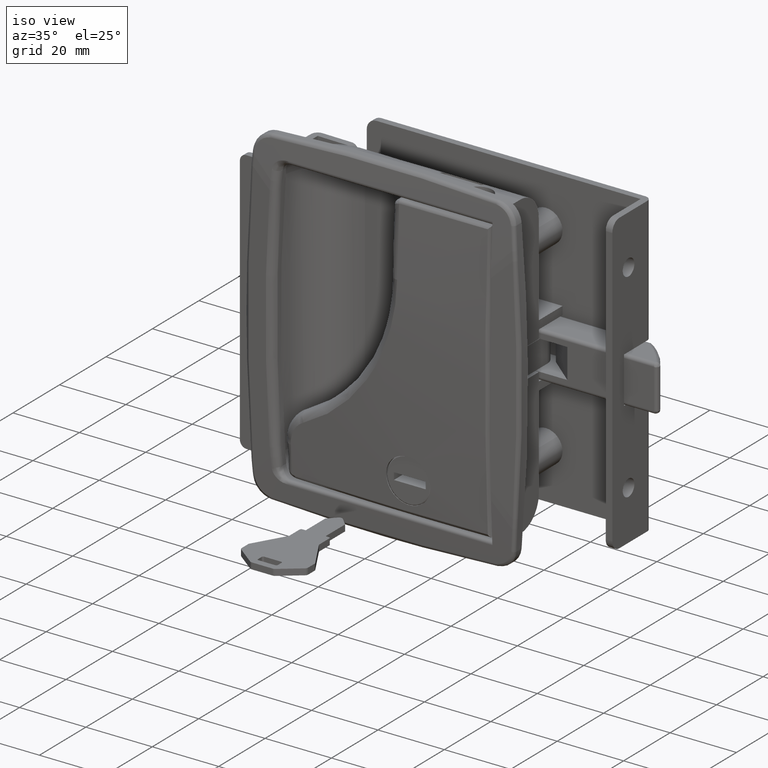
[diagram: clean part render]
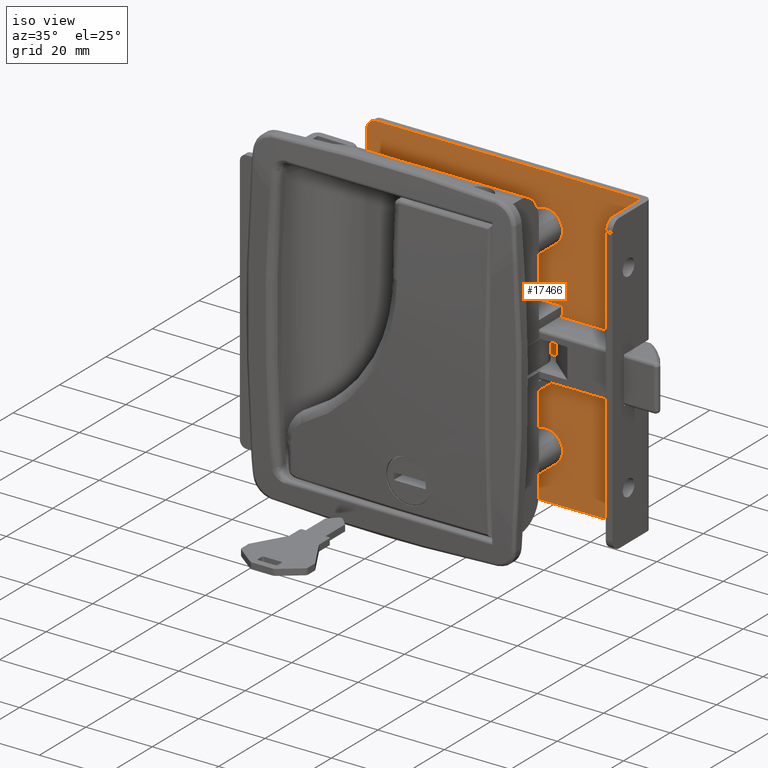
[diagram: same view with one face highlighted and labeled with its STEP entity id]
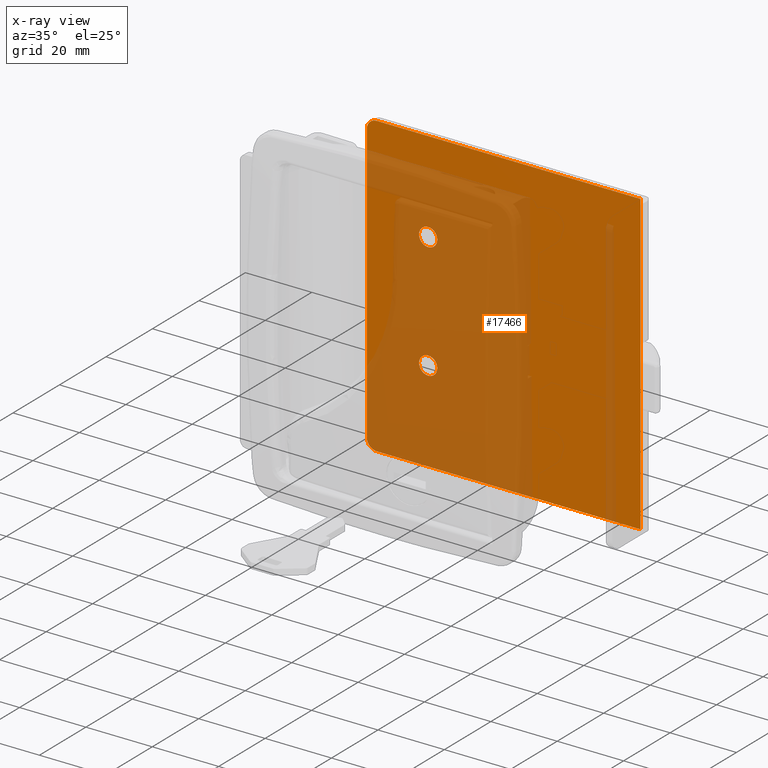
[diagram: x-ray of the same camera — body ghosted, the highlighted face saturated]
A machine part, iso view. The second image highlights one B-rep face of the part: STEP entity #17466.
The next image is the same camera in x-ray: the body ghosted, the highlighted face saturated — about 52% of this face is hidden behind the body in this view.
In plain terms, the highlighted face is a freeform B-spline surface patch.
Its self-contained STEP definition (entity closure, byte-faithful):
#11101=CARTESIAN_POINT('',(-7.499999999999770,-2.0,-14.749700000000001));
#11102=VERTEX_POINT('',#11101);
#11103=CARTESIAN_POINT('',(-5.529210521693982,-1.999999999989556,-15.581762567747401));
#11104=VERTEX_POINT('',#11103);
#11105=CARTESIAN_POINT('',(-7.499999999999770,-2.0,-14.749700000000001));
#11106=CARTESIAN_POINT('',(-7.316898805918720,-1.999999999999030,-14.749682379780181));
#11107=CARTESIAN_POINT('',(-6.927815611508847,-1.999999999996968,-14.788686678438969));
#11108=CARTESIAN_POINT('',(-6.226338163717298,-1.999999999993250,-15.014930521459121));
#11109=CARTESIAN_POINT('',(-5.768453991056186,-1.999999999990826,-15.335456611996360));
#11110=CARTESIAN_POINT('',(-5.529210521693982,-1.999999999989556,-15.581762567747401));
#11111=B_SPLINE_CURVE_WITH_KNOTS('',3,(#11105,#11106,#11107,#11108,#11109,#11110),.UNSPECIFIED.,.F.,.U.,(4,1,1,4),(0.000000032604171,0.549318739787156,1.167297478087793,2.197274861061916),.UNSPECIFIED.);
#11112=EDGE_CURVE('',#11102,#11104,#11111,.T.);
#11114=CARTESIAN_POINT('',(-10.249999999997520,-2.0,-17.499696480036189));
#11115=VERTEX_POINT('',#11114);
#11116=CARTESIAN_POINT('',(-10.249999999997520,-2.0,-17.499696480036189));
#11117=CARTESIAN_POINT('',(-10.250040727075790,-2.0,-17.252223121614630));
#11118=CARTESIAN_POINT('',(-10.173733166742830,-2.0,-16.689709287101280));
#11119=CARTESIAN_POINT('',(-9.812557236472376,-2.000000000000001,-15.926064476880111));
#11120=CARTESIAN_POINT('',(-9.279262947990672,-1.999999999999999,-15.366071417797590));
#11121=CARTESIAN_POINT('',(-8.782591651496167,-2.0,-15.051718151289061));
#11122=CARTESIAN_POINT('',(-8.219856239878654,-2.0,-14.818577055773750));
#11123=CARTESIAN_POINT('',(-7.792506192846882,-2.000000000000002,-14.749514343621270));
#11124=CARTESIAN_POINT('',(-7.499999999999770,-2.0,-14.749700000000001));
#11125=B_SPLINE_CURVE_WITH_KNOTS('',3,(#11116,#11117,#11118,#11119,#11120,#11121,#11122,#11123,#11124),.UNSPECIFIED.,.F.,.U.,(4,1,1,1,1,1,4),(0.000000113703493,0.742463611042443,1.687447851981347,2.497349232957594,3.037350483973803,3.442344041872089,4.319796312962690),.UNSPECIFIED.);
#11126=EDGE_CURVE('',#11115,#11102,#11125,.T.);
#11128=CARTESIAN_POINT('',(-7.499999999999770,-2.0,-20.249700000000001));
#11129=VERTEX_POINT('',#11128);
#11130=CARTESIAN_POINT('',(-7.499999999999770,-2.0,-20.249700000000001));
#11131=CARTESIAN_POINT('',(-7.837533458423358,-1.999999999999996,-20.250032966791679));
#11132=CARTESIAN_POINT('',(-8.354739198675501,-2.000000000000008,-20.153149346765431));
#11133=CARTESIAN_POINT('',(-9.061541571091166,-1.999999999999994,-19.797423171544150));
#11134=CARTESIAN_POINT('',(-9.578205878396684,-2.000000000000002,-19.351810811415952));
#11135=CARTESIAN_POINT('',(-9.955935345113538,-2.0,-18.786296907043699));
#11136=CARTESIAN_POINT('',(-10.191889706605741,-2.0,-18.174612791913610));
#11137=CARTESIAN_POINT('',(-10.250083225690529,-2.0,-17.747185682857449));
#11138=CARTESIAN_POINT('',(-10.249999999997520,-2.0,-17.499696480036189));
#11139=B_SPLINE_CURVE_WITH_KNOTS('',3,(#11130,#11131,#11132,#11133,#11134,#11135,#11136,#11137,#11138),.UNSPECIFIED.,.F.,.U.,(4,1,1,1,1,1,4),(0.000000108881161,1.012449949449890,1.552443345191438,2.362362228069649,3.037353272983501,3.577336101615362,4.319800280881282),.UNSPECIFIED.);
#11140=EDGE_CURVE('',#11129,#11115,#11139,.T.);
#11142=CARTESIAN_POINT('',(-5.472486765946581,-2.000000000036014,-19.357573759777740));
#11143=VERTEX_POINT('',#11142);
#11144=CARTESIAN_POINT('',(-5.472486765946581,-2.000000000036014,-19.357573759777740));
#11145=CARTESIAN_POINT('',(-5.632884688929422,-2.000000000033169,-19.532711967829290));
#11146=CARTESIAN_POINT('',(-5.962787113991256,-2.000000000027302,-19.810153578422511));
#11147=CARTESIAN_POINT('',(-6.645239811609272,-2.000000000015187,-20.153728014627610));
#11148=CARTESIAN_POINT('',(-7.167473757745406,-2.000000000005902,-20.249994313449481));
#11149=CARTESIAN_POINT('',(-7.499999999999770,-2.0,-20.249700000000001));
#11150=B_SPLINE_CURVE_WITH_KNOTS('',3,(#11144,#11145,#11146,#11147,#11148,#11149),.UNSPECIFIED.,.F.,.U.,(4,1,1,4),(0.000000021757330,0.712471145361098,1.282443303271230,2.279900308911744),.UNSPECIFIED.);
#11151=EDGE_CURVE('',#11143,#11129,#11150,.T.);
#11232=CARTESIAN_POINT('',(-4.750000000002022,-2.0,-17.499703519963809));
#11233=VERTEX_POINT('',#11232);
#11234=CARTESIAN_POINT('',(-5.529210521693982,-1.999999999989556,-15.581762567747401));
#11235=CARTESIAN_POINT('',(-5.344087492536792,-1.999999999990593,-15.771833740589409));
#11236=CARTESIAN_POINT('',(-5.082067698019520,-1.999999999992559,-16.133738010362698));
#11237=CARTESIAN_POINT('',(-4.814497771510982,-1.999999999996150,-16.792263047156290));
#11238=CARTESIAN_POINT('',(-4.749901277738459,-1.999999999998553,-17.234381178141039));
#11239=CARTESIAN_POINT('',(-4.750000000002022,-2.0,-17.499703519963809));
#11240=B_SPLINE_CURVE_WITH_KNOTS('',3,(#11234,#11235,#11236,#11237,#11238,#11239),.UNSPECIFIED.,.F.,.U.,(4,1,1,4),(0.000000027607148,0.795950466627091,1.326570638813573,2.122526361466707),.UNSPECIFIED.);
#11241=EDGE_CURVE('',#11104,#11233,#11240,.T.);
#11263=CARTESIAN_POINT('',(-4.750000000002022,-2.0,-17.499703519963809));
#11264=CARTESIAN_POINT('',(-4.749858816164802,-2.000000000005356,-17.775957734202709));
#11265=CARTESIAN_POINT('',(-4.817841016475712,-2.000000000014005,-18.222078604381711));
#11266=CARTESIAN_POINT('',(-5.080031858901183,-2.000000000026224,-18.852627991101158));
#11267=CARTESIAN_POINT('',(-5.314530314283217,-2.000000000032678,-19.185282243226069));
#11268=CARTESIAN_POINT('',(-5.472486765946581,-2.000000000036014,-19.357573759777740));
#11269=B_SPLINE_CURVE_WITH_KNOTS('',3,(#11263,#11264,#11265,#11266,#11267,#11268),.UNSPECIFIED.,.F.,.U.,(4,1,1,4),(0.000000036259958,0.828721127231631,1.338674132860253,2.039896158438242),.UNSPECIFIED.);
#11270=EDGE_CURVE('',#11233,#11143,#11269,.T.);
#11301=CARTESIAN_POINT('',(-7.499999999999770,-2.0,20.250000000000000));
#11302=VERTEX_POINT('',#11301);
#11303=CARTESIAN_POINT('',(-5.529210521693984,-1.999999999989556,19.417937432252611));
#11304=VERTEX_POINT('',#11303);
#11305=CARTESIAN_POINT('',(-7.499999999999770,-2.0,20.250000000000000));
#11306=CARTESIAN_POINT('',(-7.202434683361827,-1.999999999998423,20.250161303632581));
#11307=CARTESIAN_POINT('',(-6.721915442482777,-1.999999999995878,20.171206187170650));
#11308=CARTESIAN_POINT('',(-6.051172794726046,-1.999999999992321,19.868021044591220));
#11309=CARTESIAN_POINT('',(-5.704741598151950,-1.999999999990491,19.598434979315289));
#11310=CARTESIAN_POINT('',(-5.529210521693984,-1.999999999989556,19.417937432252611));
#11311=B_SPLINE_CURVE_WITH_KNOTS('',3,(#11305,#11306,#11307,#11308,#11309,#11310),.UNSPECIFIED.,.F.,.U.,(4,1,1,4),(0.000000032603972,0.892652287271545,1.441953475625794,2.197274861061921),.UNSPECIFIED.);
#11312=EDGE_CURVE('',#11302,#11304,#11311,.T.);
#11314=CARTESIAN_POINT('',(-10.249999999997520,-2.0,17.500003519963808));
#11315=VERTEX_POINT('',#11314);
#11316=CARTESIAN_POINT('',(-10.249999999997520,-2.0,17.500003519963808));
#11317=CARTESIAN_POINT('',(-10.250315160724130,-1.999999999999998,17.837544369680181));
#11318=CARTESIAN_POINT('',(-10.161877056846549,-2.000000000000002,18.309743031052520));
#11319=CARTESIAN_POINT('',(-9.843606316159203,-2.000000000000001,18.982800531881320));
#11320=CARTESIAN_POINT('',(-9.479815647787293,-1.999999999999999,19.448915616285980));
#11321=CARTESIAN_POINT('',(-8.909470512865472,-2.000000000000002,19.894045769532720));
#11322=CARTESIAN_POINT('',(-8.264942001347226,-1.999999999999998,20.179707164799581));
#11323=CARTESIAN_POINT('',(-7.747482412669840,-1.999999999999998,20.250073940247990));
#11324=CARTESIAN_POINT('',(-7.499999999999770,-2.0,20.250000000000000));
#11325=B_SPLINE_CURVE_WITH_KNOTS('',3,(#11316,#11317,#11318,#11319,#11320,#11321,#11322,#11323,#11324),.UNSPECIFIED.,.F.,.U.,(4,1,1,1,1,1,4),(0.000000113708223,1.012449023532240,1.417434714962523,2.227382627400161,2.767354502254437,3.577332814012101,4.319796312962660),.UNSPECIFIED.);
#11326=EDGE_CURVE('',#11315,#11302,#11325,.T.);
#11328=CARTESIAN_POINT('',(-7.499999999999770,-2.0,14.750000000000000));
#11329=VERTEX_POINT('',#11328);
#11330=CARTESIAN_POINT('',(-7.499999999999770,-2.0,14.750000000000000));
#11331=CARTESIAN_POINT('',(-7.679978807611808,-1.999999999999999,14.749986216365420));
#11332=CARTESIAN_POINT('',(-8.107461537274855,-2.000000000000002,14.792065636952559));
#11333=CARTESIAN_POINT('',(-8.687132614258569,-1.999999999999998,14.991443977934029));
#11334=CARTESIAN_POINT('',(-9.202794379102853,-2.000000000000001,15.318086553338690));
#11335=CARTESIAN_POINT('',(-9.628515786934266,-1.999999999999999,15.723359758241250));
#11336=CARTESIAN_POINT('',(-9.955956104011642,-2.000000000000002,16.213386406961192));
#11337=CARTESIAN_POINT('',(-10.191884691962811,-1.999999999999987,16.825088295334830));
#11338=CARTESIAN_POINT('',(-10.250084523846921,-2.000000000000013,17.252514855042680));
#11339=CARTESIAN_POINT('',(-10.249999999997520,-2.0,17.500003519963808));
#11340=B_SPLINE_CURVE_WITH_KNOTS('',3,(#11330,#11331,#11332,#11333,#11334,#11335,#11336,#11337,#11338,#11339),.UNSPECIFIED.,.F.,.U.,(4,1,1,1,1,1,1,4),(0.000000108879937,0.539953404360052,1.282447116584088,1.822448863168576,2.362362228069400,3.037353272983560,3.577336101615435,4.319800280881267),.UNSPECIFIED.);
#11341=EDGE_CURVE('',#11329,#11315,#11340,.T.);
#11343=CARTESIAN_POINT('',(-5.472486765946581,-2.000000000036014,15.642126240222270));
#11344=VERTEX_POINT('',#11343);
#11345=CARTESIAN_POINT('',(-5.472486765946581,-2.000000000036014,15.642126240222270));
#11346=CARTESIAN_POINT('',(-5.632886027718201,-2.000000000033167,15.466991549436390));
#11347=CARTESIAN_POINT('',(-5.962787288427234,-2.000000000027303,15.189545991472810));
#11348=CARTESIAN_POINT('',(-6.645232470728089,-2.000000000015184,14.845943854928620));
#11349=CARTESIAN_POINT('',(-7.167481377632916,-2.000000000005908,14.749740564852059));
#11350=CARTESIAN_POINT('',(-7.499999999999770,-2.0,14.750000000000000));
#11351=B_SPLINE_CURVE_WITH_KNOTS('',3,(#11345,#11346,#11347,#11348,#11349,#11350),.UNSPECIFIED.,.F.,.U.,(4,1,1,4),(0.000000021757277,0.712471145361070,1.282443303271190,2.279900308911743),.UNSPECIFIED.);
#11352=EDGE_CURVE('',#11344,#11329,#11351,.T.);
#11434=CARTESIAN_POINT('',(-4.750000000002022,-2.0,17.499996480036181));
#11435=VERTEX_POINT('',#11434);
#11436=CARTESIAN_POINT('',(-5.529210521693984,-1.999999999989556,19.417937432252611));
#11437=CARTESIAN_POINT('',(-5.282204735733840,-1.999999999990936,19.164627529497889));
#11438=CARTESIAN_POINT('',(-4.888518410723177,-1.999999999994221,18.561005604675469));
#11439=CARTESIAN_POINT('',(-4.749669102034611,-1.999999999998075,17.853776166721879));
#11440=CARTESIAN_POINT('',(-4.750000000002022,-2.0,17.499996480036181));
#11441=B_SPLINE_CURVE_WITH_KNOTS('',3,(#11436,#11437,#11438,#11439,#11440),.UNSPECIFIED.,.F.,.U.,(4,1,4),(0.000000027607248,1.061263342492509,2.122526361466716),.UNSPECIFIED.);
#11442=EDGE_CURVE('',#11304,#11435,#11441,.T.);
#11464=CARTESIAN_POINT('',(-4.750000000002022,-2.0,17.499996480036181));
#11465=CARTESIAN_POINT('',(-4.749770427195475,-2.000000000006180,17.181237963525412));
#11466=CARTESIAN_POINT('',(-4.869590686073749,-2.000000000019356,16.501460568280120));
#11467=CARTESIAN_POINT('',(-5.228135510203121,-2.000000000030857,15.908234899458909));
#11468=CARTESIAN_POINT('',(-5.472486765946581,-2.000000000036014,15.642126240222270));
#11469=B_SPLINE_CURVE_WITH_KNOTS('',3,(#11464,#11465,#11466,#11467,#11468),.UNSPECIFIED.,.F.,.U.,(4,1,4),(0.000000036259422,0.956209975207287,2.039896158438234),.UNSPECIFIED.);
#11470=EDGE_CURVE('',#11435,#11344,#11469,.T.);
#14268=CARTESIAN_POINT('',(56.500000000000000,-2.0,7.0));
#14269=VERTEX_POINT('',#14268);
#14277=CARTESIAN_POINT('',(56.500000000000000,-2.0,-6.999700000000000));
#14278=VERTEX_POINT('',#14277);
#14279=CARTESIAN_POINT('',(56.500000000000000,-2.0,-6.999700000000000));
#14280=CARTESIAN_POINT('',(56.500000000000000,-2.0,7.0));
#14281=QUASI_UNIFORM_CURVE('',1,(#14279,#14280),.UNSPECIFIED.,.F.,.U.);
#14282=EDGE_CURVE('',#14278,#14269,#14281,.T.);
#17227=CARTESIAN_POINT('',(-23.001000000000001,-2.0,-44.999699999999997));
#17228=VERTEX_POINT('',#17227);
#17229=CARTESIAN_POINT('',(-26.001000000000001,-2.0,-41.999699999999997));
#17230=VERTEX_POINT('',#17229);
#17231=CARTESIAN_POINT('',(-23.001000000000001,-2.0,-44.999699999999997));
#17232=CARTESIAN_POINT('',(-23.393764571658529,-2.0,-45.000129261643721));
#17233=CARTESIAN_POINT('',(-24.080640927970730,-2.000000000000001,-44.862721129071574));
#17234=CARTESIAN_POINT('',(-24.931924465107549,-2.000000000000001,-44.352555926348963));
#17235=CARTESIAN_POINT('',(-25.465042997048620,-2.0,-43.764198200137741));
#17236=CARTESIAN_POINT('',(-25.883572152729460,-1.999999999999995,-42.981156749737721));
#17237=CARTESIAN_POINT('',(-26.001451573942870,-2.000000000000005,-42.392486294234338));
#17238=CARTESIAN_POINT('',(-26.001000000000001,-2.0,-41.999699999999997));
#17239=B_SPLINE_CURVE_WITH_KNOTS('',3,(#17231,#17232,#17233,#17234,#17235,#17236,#17237,#17238),.UNSPECIFIED.,.F.,.U.,(4,1,1,1,1,4),(0.000000044340976,1.178128434674461,2.061724433515482,2.945302609793401,3.534380456925827,4.712507233003985),.UNSPECIFIED.);
#17240=EDGE_CURVE('',#17228,#17230,#17239,.T.);
#17284=CARTESIAN_POINT('',(-26.001000000000001,-2.0,42.0));
#17285=VERTEX_POINT('',#17284);
#17286=CARTESIAN_POINT('',(-23.001000000000001,-2.0,45.0));
#17287=VERTEX_POINT('',#17286);
#17288=CARTESIAN_POINT('',(-26.001000000000001,-2.0,42.0));
#17289=CARTESIAN_POINT('',(-26.001449054686120,-2.000000000000006,42.392789249416417));
#17290=CARTESIAN_POINT('',(-25.883583526195029,-1.999999999999993,42.981452272948729));
#17291=CARTESIAN_POINT('',(-25.465031467663572,-2.000000000000010,43.764503055108833));
#17292=CARTESIAN_POINT('',(-24.998567920605598,-1.999999999999986,44.279256935978630));
#17293=CARTESIAN_POINT('',(-24.424296354977240,-2.000000000000012,44.662806158986697));
#17294=CARTESIAN_POINT('',(-23.786326822481328,-1.999999999999998,44.927093026071219));
#17295=CARTESIAN_POINT('',(-23.295538619299180,-1.999999999999999,45.000139691141342));
#17296=CARTESIAN_POINT('',(-23.001000000000001,-2.0,45.0));
#17297=B_SPLINE_CURVE_WITH_KNOTS('',3,(#17288,#17289,#17290,#17291,#17292,#17293,#17294,#17295,#17296),.UNSPECIFIED.,.F.,.U.,(4,1,1,1,1,1,4),(0.000000044337222,1.178128434670292,1.767193824037380,2.650777138780541,3.239837604469029,3.828923309387461,4.712507233004125),.UNSPECIFIED.);
#17298=EDGE_CURVE('',#17285,#17287,#17297,.T.);
#17334=CARTESIAN_POINT('',(56.500000000000000,-2.0,45.0));
#17335=VERTEX_POINT('',#17334);
#17336=CARTESIAN_POINT('',(56.500000000000000,-2.0,45.0));
#17337=CARTESIAN_POINT('',(-23.001000000000001,-2.0,45.0));
#17338=QUASI_UNIFORM_CURVE('',1,(#17336,#17337),.UNSPECIFIED.,.F.,.U.);
#17339=EDGE_CURVE('',#17335,#17287,#17338,.T.);
#17407=CARTESIAN_POINT('',(56.500000000000000,-2.0,-44.999699999999997));
#17408=VERTEX_POINT('',#17407);
#17414=CARTESIAN_POINT('',(56.500000000000000,-2.0,-44.999699999999997));
#17415=CARTESIAN_POINT('',(-23.001000000000001,-2.0,-44.999699999999997));
#17416=QUASI_UNIFORM_CURVE('',1,(#17414,#17415),.UNSPECIFIED.,.F.,.U.);
#17417=EDGE_CURVE('',#17408,#17228,#17416,.T.);
#17423=CARTESIAN_POINT('',(-30.121924790097061,-2.0,49.495484519020977));
#17424=CARTESIAN_POINT('',(-30.121924790097061,-2.0,-49.495180495720867));
#17425=CARTESIAN_POINT('',(60.620927002946317,-2.0,49.495484519020977));
#17426=CARTESIAN_POINT('',(60.620927002946317,-2.0,-49.495180495720867));
#17427=B_SPLINE_SURFACE_WITH_KNOTS('',1,1,((#17423,#17425),(#17424,#17426)),.UNSPECIFIED.,.F.,.F.,.U.,(2,2),(2,2),(0.0,98.990665014741865),(0.0,90.742851793043371),.UNSPECIFIED.);
#17428=CARTESIAN_POINT('',(-26.001000000000001,-2.0,-41.999699999999997));
#17429=CARTESIAN_POINT('',(-26.001000000000001,-2.0,42.0));
#17430=QUASI_UNIFORM_CURVE('',1,(#17428,#17429),.UNSPECIFIED.,.F.,.U.);
#17431=EDGE_CURVE('',#17230,#17285,#17430,.T.);
#17432=ORIENTED_EDGE('',*,*,#17431,.F.);
#17433=ORIENTED_EDGE('',*,*,#17240,.F.);
#17434=ORIENTED_EDGE('',*,*,#17417,.F.);
#17435=CARTESIAN_POINT('',(56.500000000000000,-2.0,-44.999699999999997));
#17436=CARTESIAN_POINT('',(56.500000000000000,-2.0,-6.999700000000000));
#17437=QUASI_UNIFORM_CURVE('',1,(#17435,#17436),.UNSPECIFIED.,.F.,.U.);
#17438=EDGE_CURVE('',#17408,#14278,#17437,.T.);
#17439=ORIENTED_EDGE('',*,*,#17438,.T.);
#17440=ORIENTED_EDGE('',*,*,#14282,.T.);
#17441=CARTESIAN_POINT('',(56.500000000000000,-2.0,7.0));
#17442=CARTESIAN_POINT('',(56.500000000000000,-2.0,45.0));
#17443=QUASI_UNIFORM_CURVE('',1,(#17441,#17442),.UNSPECIFIED.,.F.,.U.);
#17444=EDGE_CURVE('',#14269,#17335,#17443,.T.);
#17445=ORIENTED_EDGE('',*,*,#17444,.T.);
#17446=ORIENTED_EDGE('',*,*,#17339,.T.);
#17447=ORIENTED_EDGE('',*,*,#17298,.F.);
#17448=EDGE_LOOP('',(#17432,#17433,#17434,#17439,#17440,#17445,#17446,#17447));
#17449=FACE_OUTER_BOUND('',#17448,.T.);
#17450=ORIENTED_EDGE('',*,*,#11341,.T.);
#17451=ORIENTED_EDGE('',*,*,#11326,.T.);
#17452=ORIENTED_EDGE('',*,*,#11312,.T.);
#17453=ORIENTED_EDGE('',*,*,#11442,.T.);
#17454=ORIENTED_EDGE('',*,*,#11470,.T.);
#17455=ORIENTED_EDGE('',*,*,#11352,.T.);
#17456=EDGE_LOOP('',(#17450,#17451,#17452,#17453,#17454,#17455));
#17457=FACE_BOUND('',#17456,.T.);
#17458=ORIENTED_EDGE('',*,*,#11140,.T.);
#17459=ORIENTED_EDGE('',*,*,#11126,.T.);
#17460=ORIENTED_EDGE('',*,*,#11112,.T.);
#17461=ORIENTED_EDGE('',*,*,#11241,.T.);
#17462=ORIENTED_EDGE('',*,*,#11270,.T.);
#17463=ORIENTED_EDGE('',*,*,#11151,.T.);
#17464=EDGE_LOOP('',(#17458,#17459,#17460,#17461,#17462,#17463));
#17465=FACE_BOUND('',#17464,.T.);
#17466=ADVANCED_FACE('',(#17449,#17457,#17465),#17427,.T.);